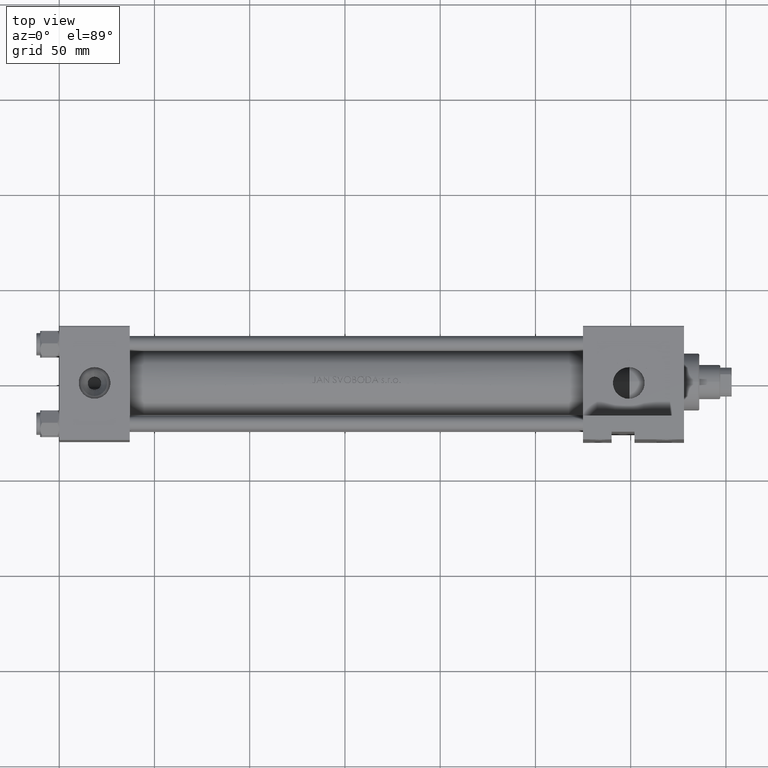
[diagram: clean part render]
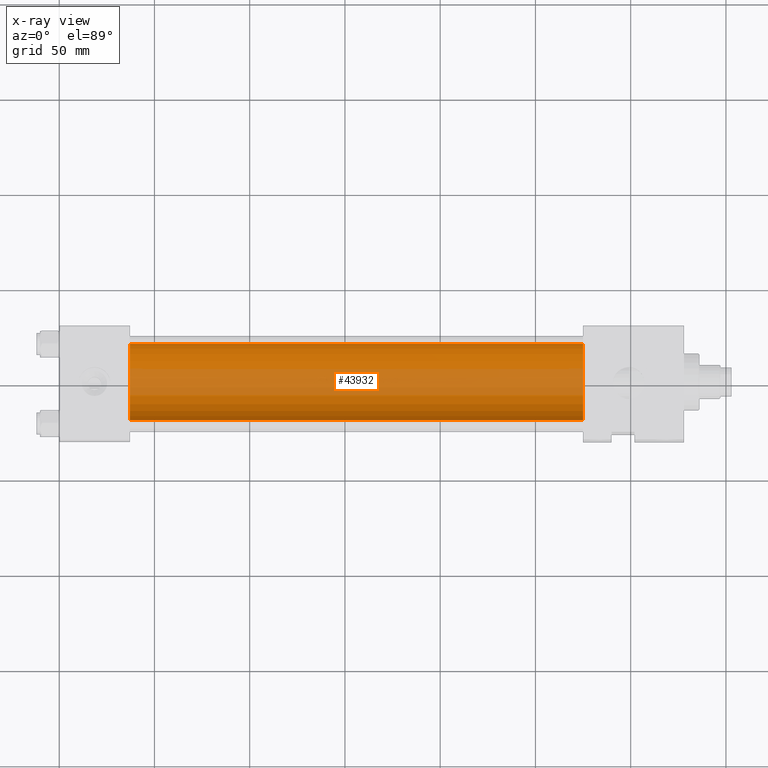
[diagram: x-ray — body ghosted, one internal face saturated and labeled with its STEP entity id]
A machine part, top view, then the same camera in x-ray: the body is ghosted and one INTERNAL B-rep face — a face not visible from any outside direction — is saturated and labeled: STEP entity #43932.
In plain terms, the highlighted cylindrical surface (partial cylindrical patch) has radius 20 mm, axis along (-1, -0, 0).
Its self-contained STEP definition (entity closure, byte-faithful):
#257 = EDGE_CURVE ( 'NONE', #21377, #28551, #48292, .T. ) ;
#1333 = ORIENTED_EDGE ( 'NONE', *, *, #257, .F. ) ;
#4968 = DIRECTION ( 'NONE',  ( -1.000000000000000000, -0.000000000000000000, -0.000000000000000000 ) ) ;
#6617 = CARTESIAN_POINT ( 'NONE',  ( 274.9999999999999432, 2.326828918379970970E-15, -19.00000000000000000 ) ) ;
#7337 = DIRECTION ( 'NONE',  ( -1.000000000000000000, -0.000000000000000000, -0.000000000000000000 ) ) ;
#7349 = DIRECTION ( 'NONE',  ( 1.000000000000000000, 0.000000000000000000, 0.000000000000000000 ) ) ;
#7486 = CARTESIAN_POINT ( 'NONE',  ( 37.00000000000000000, -1.224646799147354686E-16, 21.00000000000000000 ) ) ;
#8188 = EDGE_LOOP ( 'NONE', ( #1333, #25382, #37522, #8557 ) ) ;
#8557 = ORIENTED_EDGE ( 'NONE', *, *, #40845, .F. ) ;
#11827 = VERTEX_POINT ( 'NONE', #7486 ) ;
#12360 = LINE ( 'NONE', #12600, #12735 ) ;
#12600 = CARTESIAN_POINT ( 'NONE',  ( 274.9999999999999432, -1.224646799147354686E-16, 21.00000000000000000 ) ) ;
#12654 = AXIS2_PLACEMENT_3D ( 'NONE', #22866, #7349, #40676 ) ;
#12735 = VECTOR ( 'NONE', #4968, 1000.000000000000000 ) ;
#13367 = EDGE_CURVE ( 'NONE', #29617, #11827, #12360, .T. ) ;
#16775 = CARTESIAN_POINT ( 'NONE',  ( 37.00000000000000000, 2.326828918379970970E-15, -19.00000000000000000 ) ) ;
#16820 = CARTESIAN_POINT ( 'NONE',  ( 37.00000000000000000, -1.224646799147354686E-16, 1.000000000000000888 ) ) ;
#21377 = VERTEX_POINT ( 'NONE', #38785 ) ;
#22866 = CARTESIAN_POINT ( 'NONE',  ( 274.9999999999999432, -1.224646799147354686E-16, 1.000000000000000888 ) ) ;
#23609 = DIRECTION ( 'NONE',  ( -1.000000000000000000, -0.000000000000000000, -0.000000000000000000 ) ) ;
#24703 = CIRCLE ( 'NONE', #43594, 20.00000000000000000 ) ;
#25382 = ORIENTED_EDGE ( 'NONE', *, *, #34707, .T. ) ;
#27558 = DIRECTION ( 'NONE',  ( 0.000000000000000000, 0.000000000000000000, 1.000000000000000000 ) ) ;
#28551 = VERTEX_POINT ( 'NONE', #16775 ) ;
#29617 = VERTEX_POINT ( 'NONE', #45837 ) ;
#31887 = DIRECTION ( 'NONE',  ( 1.000000000000000000, 0.000000000000000000, 0.000000000000000000 ) ) ;
#34707 = EDGE_CURVE ( 'NONE', #21377, #29617, #44175, .T. ) ;
#35670 = AXIS2_PLACEMENT_3D ( 'NONE', #39173, #23609, #27558 ) ;
#37522 = ORIENTED_EDGE ( 'NONE', *, *, #13367, .T. ) ;
#38429 = CYLINDRICAL_SURFACE ( 'NONE', #35670, 20.00000000000000000 ) ;
#38785 = CARTESIAN_POINT ( 'NONE',  ( 274.9999999999999432, 2.326828918379970970E-15, -19.00000000000000000 ) ) ;
#38923 = FACE_OUTER_BOUND ( 'NONE', #8188, .T. ) ;
#39173 = CARTESIAN_POINT ( 'NONE',  ( 274.9999999999999432, -1.224646799147354686E-16, 1.000000000000000888 ) ) ;
#40676 = DIRECTION ( 'NONE',  ( 0.000000000000000000, 0.000000000000000000, -1.000000000000000000 ) ) ;
#40845 = EDGE_CURVE ( 'NONE', #28551, #11827, #24703, .T. ) ;
#43594 = AXIS2_PLACEMENT_3D ( 'NONE', #16820, #31887, #46919 ) ;
#43932 = ADVANCED_FACE ( 'NONE', ( #38923 ), #38429, .F. ) ;
#44175 = CIRCLE ( 'NONE', #12654, 20.00000000000000000 ) ;
#45179 = VECTOR ( 'NONE', #7337, 1000.000000000000000 ) ;
#45837 = CARTESIAN_POINT ( 'NONE',  ( 274.9999999999999432, -1.224646799147354686E-16, 21.00000000000000000 ) ) ;
#46919 = DIRECTION ( 'NONE',  ( 0.000000000000000000, 0.000000000000000000, -1.000000000000000000 ) ) ;
#48292 = LINE ( 'NONE', #6617, #45179 ) ;